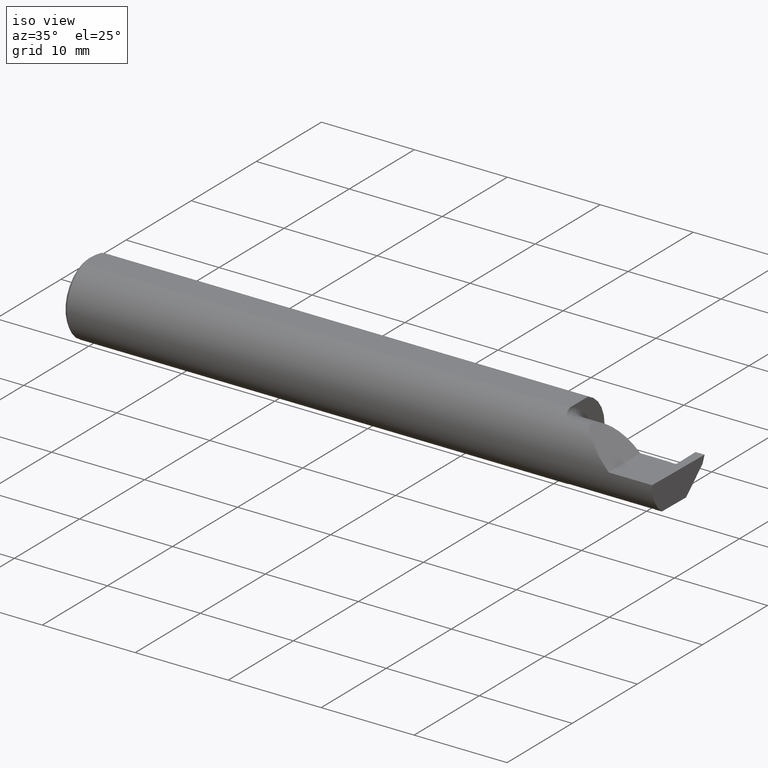
[diagram: clean part render]
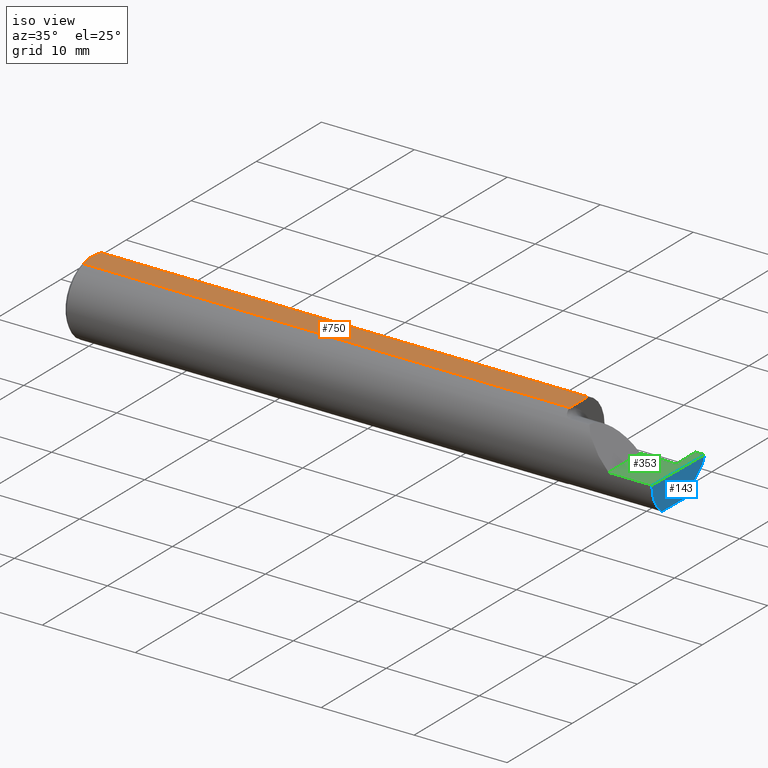
[diagram: same view with three faces highlighted in distinct colors, each labeled with its STEP entity id]
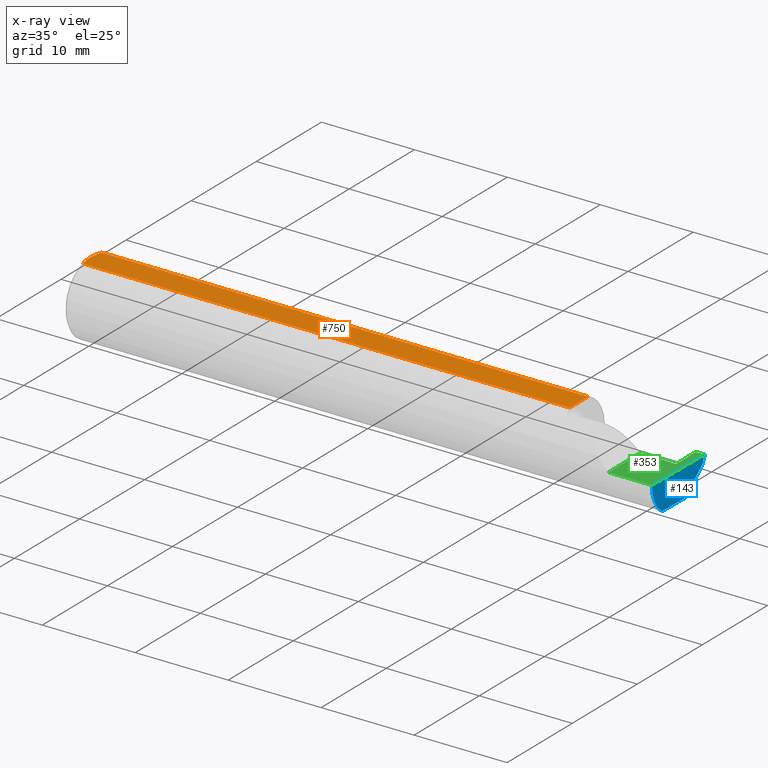
[diagram: x-ray of the same camera — body ghosted, the three highlighted faces saturated]
A machine part, iso view with three faces highlighted in distinct colors.
The next image is the same camera in x-ray (body ghosted, the three faces saturated) — at least one of them is partly hidden behind the body in this view.
Their STEP definitions:

[orange] entity #750 — the highlighted planar face has unit normal (0, -0, 1).
#2 = EDGE_CURVE ( 'NONE', #561, #110, #697, .T. ) ;
#42 = CARTESIAN_POINT ( 'NONE',  ( 0.005910707775482238607, -0.01866948012536270504, 0.1461000000000000076 ) ) ;
#74 = ORIENTED_EDGE ( 'NONE', *, *, #2, .T. ) ;
#78 = CARTESIAN_POINT ( 'NONE',  ( 2.075000000000000178, -0.1561000000000000165, 0.1460999999999999799 ) ) ;
#109 = AXIS2_PLACEMENT_3D ( 'NONE', #177, #838, #264 ) ;
#110 = VERTEX_POINT ( 'NONE', #733 ) ;
#131 = EDGE_CURVE ( 'NONE', #819, #561, #1082, .T. ) ;
#177 = CARTESIAN_POINT ( 'NONE',  ( 2.500000000000000000, -0.1561000000000000165, 0.1460999999999999799 ) ) ;
#190 = ORIENTED_EDGE ( 'NONE', *, *, #131, .T. ) ;
#217 = CARTESIAN_POINT ( 'NONE',  ( 0.01499999999999999771, 0.05497272050753900657, 0.1460999999999999799 ) ) ;
#225 = CARTESIAN_POINT ( 'NONE',  ( 0.004999999999999902960, 0.009391435229055663386, 0.1460999999999999799 ) ) ;
#229 = EDGE_LOOP ( 'NONE', ( #607, #190, #74, #574, #603 ) ) ;
#247 = VERTEX_POINT ( 'NONE', #302 ) ;
#264 = DIRECTION ( 'NONE',  ( 1.000000000000000000, 0.000000000000000000, -0.000000000000000000 ) ) ;
#269 = B_SPLINE_CURVE_WITH_KNOTS ( 'NONE', 3,
 ( #217, #550, #811, #389, #225, #729 ),
 .UNSPECIFIED., .F., .F.,
 ( 4, 2, 4 ),
 ( 0.003294562426666346362, 0.003999440028384116178, 0.004704317630101885993 ),
 .UNSPECIFIED. ) ;
#276 = CARTESIAN_POINT ( 'NONE',  ( 0.01499999999999999944, -0.05497272050753900657, 0.1460999999999999799 ) ) ;
#302 = CARTESIAN_POINT ( 'NONE',  ( 0.004999999999999936787, 2.057148927093534050E-17, 0.1460999999999999799 ) ) ;
#338 = EDGE_CURVE ( 'NONE', #247, #1070, #552, .T. ) ;
#345 = VECTOR ( 'NONE', #643, 39.37007874015748143 ) ;
#383 = CARTESIAN_POINT ( 'NONE',  ( 0.000000000000000000, -0.05497272050753900657, 0.1460999999999999799 ) ) ;
#389 = CARTESIAN_POINT ( 'NONE',  ( 0.005929349363808920914, 0.01879672308419500643, 0.1460999999999999799 ) ) ;
#451 = CARTESIAN_POINT ( 'NONE',  ( 0.009356849677355947789, -0.03706298561014172849, 0.1460999999999999799 ) ) ;
#478 = EDGE_CURVE ( 'NONE', #1070, #819, #806, .T. ) ;
#482 = EDGE_CURVE ( 'NONE', #110, #247, #269, .T. ) ;
#498 = PLANE ( 'NONE',  #109 ) ;
#550 = CARTESIAN_POINT ( 'NONE',  ( 0.01187749995209270472, 0.04610609988228752537, 0.1460999999999999799 ) ) ;
#552 = B_SPLINE_CURVE_WITH_KNOTS ( 'NONE', 3,
 ( #949, #690, #42, #451, #793, #867 ),
 .UNSPECIFIED., .F., .F.,
 ( 4, 2, 4 ),
 ( 0.004704317630101885993, 0.005408659995628783967, 0.006113002361155681942 ),
 .UNSPECIFIED. ) ;
#561 = VERTEX_POINT ( 'NONE', #761 ) ;
#574 = ORIENTED_EDGE ( 'NONE', *, *, #482, .T. ) ;
#587 = CARTESIAN_POINT ( 'NONE',  ( 2.075000000000000178, -0.05497272050753899270, 0.1460999999999999799 ) ) ;
#603 = ORIENTED_EDGE ( 'NONE', *, *, #338, .T. ) ;
#607 = ORIENTED_EDGE ( 'NONE', *, *, #478, .T. ) ;
#643 = DIRECTION ( 'NONE',  ( -0.000000000000000000, 1.000000000000000000, 0.000000000000000000 ) ) ;
#690 = CARTESIAN_POINT ( 'NONE',  ( 0.004999999999999897755, -0.009384304010803548590, 0.1460999999999999521 ) ) ;
#697 = LINE ( 'NONE', #788, #895 ) ;
#729 = CARTESIAN_POINT ( 'NONE',  ( 0.004999999999999936787, 2.057148927093534050E-17, 0.1460999999999999799 ) ) ;
#733 = CARTESIAN_POINT ( 'NONE',  ( 0.01499999999999999771, 0.05497272050753900657, 0.1460999999999999799 ) ) ;
#750 = ADVANCED_FACE ( 'NONE', ( #1026 ), #498, .T. ) ;
#761 = CARTESIAN_POINT ( 'NONE',  ( 2.075000000000000178, 0.05497272050753900657, 0.1460999999999999799 ) ) ;
#788 = CARTESIAN_POINT ( 'NONE',  ( 0.000000000000000000, 0.05497272050753900657, 0.1460999999999999799 ) ) ;
#793 = CARTESIAN_POINT ( 'NONE',  ( 0.01190375560897317594, -0.04618065518901644934, 0.1460999999999999799 ) ) ;
#806 = LINE ( 'NONE', #383, #1055 ) ;
#811 = CARTESIAN_POINT ( 'NONE',  ( 0.009371209226503902576, 0.03711161584255317364, 0.1461000000000000076 ) ) ;
#819 = VERTEX_POINT ( 'NONE', #587 ) ;
#838 = DIRECTION ( 'NONE',  ( 0.000000000000000000, -0.000000000000000000, 1.000000000000000000 ) ) ;
#867 = CARTESIAN_POINT ( 'NONE',  ( 0.01499999999999999944, -0.05497272050753900657, 0.1460999999999999799 ) ) ;
#895 = VECTOR ( 'NONE', #1053, 39.37007874015748143 ) ;
#949 = CARTESIAN_POINT ( 'NONE',  ( 0.004999999999999936787, 2.057148927093534050E-17, 0.1460999999999999799 ) ) ;
#979 = DIRECTION ( 'NONE',  ( 1.000000000000000000, 0.000000000000000000, 0.000000000000000000 ) ) ;
#1026 = FACE_OUTER_BOUND ( 'NONE', #229, .T. ) ;
#1053 = DIRECTION ( 'NONE',  ( -1.000000000000000000, -0.000000000000000000, -0.000000000000000000 ) ) ;
#1055 = VECTOR ( 'NONE', #979, 39.37007874015748143 ) ;
#1070 = VERTEX_POINT ( 'NONE', #276 ) ;
#1082 = LINE ( 'NONE', #78, #345 ) ;

[blue] entity #143 — the highlighted planar face has unit normal (-0.9995, 0.0174, 0.0262).
#8 = CARTESIAN_POINT ( 'NONE',  ( 2.500000000000000000, 0.1539000000000000090, 0.000000000000000000 ) ) ;
#26 = ORIENTED_EDGE ( 'NONE', *, *, #831, .F. ) ;
#28 = ORIENTED_EDGE ( 'NONE', *, *, #286, .F. ) ;
#37 =( BOUNDED_CURVE ( )  B_SPLINE_CURVE ( 3, ( #1084, #80, #299, #646 ),
 .UNSPECIFIED., .F., .T. ) 
 B_SPLINE_CURVE_WITH_KNOTS ( ( 4, 4 ),
 ( 0.5517985523994612951, 0.5878737167659243701 ),
 .UNSPECIFIED. ) 
 CURVE ( )  GEOMETRIC_REPRESENTATION_ITEM ( )  RATIONAL_B_SPLINE_CURVE ( ( 1.000000000000000000, 0.9998915514833921492, 0.9998915514833921492, 1.000000000000000000 ) ) 
 REPRESENTATION_ITEM ( '' )  );
#65 = DIRECTION ( 'NONE',  ( -0.9995050723230146650, 0.01744642593347468448, 0.02617694830787320806 ) ) ;
#80 = CARTESIAN_POINT ( 'NONE',  ( 2.492432917398131220, -0.09210618219364773152, -0.1249728871357007887 ) ) ;
#94 = CARTESIAN_POINT ( 'NONE',  ( 2.494899167008080454, 0.04922584398801997663, -0.1250000000000000278 ) ) ;
#135 = PLANE ( 'NONE',  #790 ) ;
#143 = ADVANCED_FACE ( 'NONE', ( #751 ), #135, .F. ) ;
#170 = CARTESIAN_POINT ( 'NONE',  ( 2.492495113650786021, -0.1336908980339254205, -0.09488266708345007017 ) ) ;
#200 = CARTESIAN_POINT ( 'NONE',  ( 2.492408115719126460, -0.09360841750841747411, -0.1249186702281520206 ) ) ;
#246 = LINE ( 'NONE', #679, #379 ) ;
#274 = EDGE_CURVE ( 'NONE', #1025, #491, #246, .T. ) ;
#286 = EDGE_CURVE ( 'NONE', #1000, #1025, #768, .T. ) ;
#299 = CARTESIAN_POINT ( 'NONE',  ( 2.492458441733171881, -0.09060321336276837279, -0.1250000000000000278 ) ) ;
#372 = DIRECTION ( 'NONE',  ( -0.01745240643727716603, -0.9998476951563912696, 0.000000000000000000 ) ) ;
#376 = VERTEX_POINT ( 'NONE', #1052 ) ;
#379 = VECTOR ( 'NONE', #578, 39.37007874015748854 ) ;
#408 = DIRECTION ( 'NONE',  ( 0.02618093305822682959, 0.000000000000000000, 0.9996572206232497981 ) ) ;
#423 = CARTESIAN_POINT ( 'NONE',  ( 2.494588929872255001, -0.1561000000000000443, 0.000000000000000000 ) ) ;
#432 = VERTEX_POINT ( 'NONE', #200 ) ;
#441 = ORIENTED_EDGE ( 'NONE', *, *, #712, .T. ) ;
#446 =( BOUNDED_CURVE ( )  B_SPLINE_CURVE ( 3, ( #931, #170, #505, #423 ),
 .UNSPECIFIED., .F., .T. ) 
 B_SPLINE_CURVE_WITH_KNOTS ( ( 4, 4 ),
 ( 0.05521439950980804034, 0.9829226100289724100 ),
 .UNSPECIFIED. ) 
 CURVE ( )  GEOMETRIC_REPRESENTATION_ITEM ( )  RATIONAL_B_SPLINE_CURVE ( ( 1.000000000000000000, 0.9295565493311498395, 0.9295565493311498395, 1.000000000000000000 ) ) 
 REPRESENTATION_ITEM ( '' )  );
#491 = VERTEX_POINT ( 'NONE', #94 ) ;
#505 = CARTESIAN_POINT ( 'NONE',  ( 2.493277140361873201, -0.1561000000000000165, -0.05008759057876776416 ) ) ;
#514 = CARTESIAN_POINT ( 'NONE',  ( 2.499001794690755673, 0.1432258439880203515, -0.03099999999999999978 ) ) ;
#573 = VECTOR ( 'NONE', #372, 39.37007874015748143 ) ;
#578 = DIRECTION ( 'NONE',  ( -0.03084697155452407330, -0.7067702824630920366, -0.7067702824630894831 ) ) ;
#618 = CARTESIAN_POINT ( 'NONE',  ( 2.495673289801201733, 0.09357530910345747410, -0.1250000000000000278 ) ) ;
#646 = CARTESIAN_POINT ( 'NONE',  ( 2.492484680420020027, -0.08910000000000001252, -0.1250000000000000000 ) ) ;
#675 = CARTESIAN_POINT ( 'NONE',  ( 2.492484680420020027, -0.08910000000000001252, -0.1250000000000000000 ) ) ;
#679 = CARTESIAN_POINT ( 'NONE',  ( 2.498907590953288960, 0.1410674343035965006, -0.03315840968442382991 ) ) ;
#710 = ORIENTED_EDGE ( 'NONE', *, *, #814, .F. ) ;
#712 = EDGE_CURVE ( 'NONE', #432, #773, #37, .T. ) ;
#714 = ORIENTED_EDGE ( 'NONE', *, *, #274, .F. ) ;
#717 = VECTOR ( 'NONE', #1018, 39.37007874015748854 ) ;
#732 = DIRECTION ( 'NONE',  ( -0.01745240643727716257, -0.9998476951563912696, 1.869448656733061669E-16 ) ) ;
#734 = ORIENTED_EDGE ( 'NONE', *, *, #827, .T. ) ;
#751 = FACE_OUTER_BOUND ( 'NONE', #1077, .T. ) ;
#765 = LINE ( 'NONE', #8, #573 ) ;
#768 = LINE ( 'NONE', #777, #717 ) ;
#773 = VERTEX_POINT ( 'NONE', #675 ) ;
#777 = CARTESIAN_POINT ( 'NONE',  ( 2.499907390804593899, 0.1529096977137292535, -0.002876046671974680051 ) ) ;
#790 = AXIS2_PLACEMENT_3D ( 'NONE', #986, #65, #408 ) ;
#814 = EDGE_CURVE ( 'NONE', #432, #376, #446, .T. ) ;
#827 = EDGE_CURVE ( 'NONE', #1000, #376, #765, .T. ) ;
#831 = EDGE_CURVE ( 'NONE', #491, #773, #1068, .T. ) ;
#864 = VECTOR ( 'NONE', #732, 39.37007874015748143 ) ;
#931 = CARTESIAN_POINT ( 'NONE',  ( 2.492408115719126460, -0.09360841750841747411, -0.1249186702281520206 ) ) ;
#986 = CARTESIAN_POINT ( 'NONE',  ( 2.500000000000000000, 0.1539000000000000090, 0.000000000000000000 ) ) ;
#1000 = VERTEX_POINT ( 'NONE', #1027 ) ;
#1018 = DIRECTION ( 'NONE',  ( -0.03043175897092292859, -0.3254173665140246419, -0.9450806556146477133 ) ) ;
#1025 = VERTEX_POINT ( 'NONE', #514 ) ;
#1027 = CARTESIAN_POINT ( 'NONE',  ( 2.500000000000000000, 0.1539000000000000090, 0.000000000000000000 ) ) ;
#1052 = CARTESIAN_POINT ( 'NONE',  ( 2.494588929872255001, -0.1561000000000000443, 0.000000000000000000 ) ) ;
#1068 = LINE ( 'NONE', #618, #864 ) ;
#1077 = EDGE_LOOP ( 'NONE', ( #441, #26, #714, #28, #734, #710 ) ) ;
#1084 = CARTESIAN_POINT ( 'NONE',  ( 2.492408115719126460, -0.09360841750841747411, -0.1249186702281520206 ) ) ;

[green] entity #353 — the highlighted planar face has unit normal (-0, 0, -1).
#8 = CARTESIAN_POINT ( 'NONE',  ( 2.500000000000000000, 0.1539000000000000090, 0.000000000000000000 ) ) ;
#31 = CARTESIAN_POINT ( 'NONE',  ( 2.456471356043859799, 0.03389999999999732117, -4.694856722559639658E-11 ) ) ;
#34 = CARTESIAN_POINT ( 'NONE',  ( 2.310000000000000053, -0.1560999999999999888, 2.326828918379970872E-17 ) ) ;
#44 = CARTESIAN_POINT ( 'NONE',  ( 2.463470289915465905, 0.04102216684465942453, -1.258616854567686712E-10 ) ) ;
#66 = EDGE_LOOP ( 'NONE', ( #235, #427, #764, #770, #890, #721, #825, #497, #981 ) ) ;
#138 = CARTESIAN_POINT ( 'NONE',  ( 3.749399456654646757E-32, -0.1560999999999999888, 3.061616997868384127E-16 ) ) ;
#175 = EDGE_CURVE ( 'NONE', #579, #370, #373, .T. ) ;
#194 = DIRECTION ( 'NONE',  ( 1.000000000000000000, 0.000000000000000000, 0.000000000000000000 ) ) ;
#210 = PLANE ( 'NONE',  #310 ) ;
#227 = EDGE_CURVE ( 'NONE', #370, #316, #1061, .T. ) ;
#235 = ORIENTED_EDGE ( 'NONE', *, *, #716, .F. ) ;
#273 = DIRECTION ( 'NONE',  ( -0.000000000000000000, 1.000000000000000000, -0.000000000000000000 ) ) ;
#278 = LINE ( 'NONE', #612, #1003 ) ;
#310 = AXIS2_PLACEMENT_3D ( 'NONE', #970, #543, #955 ) ;
#316 = VERTEX_POINT ( 'NONE', #668 ) ;
#335 = CARTESIAN_POINT ( 'NONE',  ( 2.463470289915465905, 0.04102216684465942453, -1.258616854567686712E-10 ) ) ;
#351 = CARTESIAN_POINT ( 'NONE',  ( 2.399999999999999911, 0.1539000000000000090, -2.694222958124035986E-19 ) ) ;
#353 = ADVANCED_FACE ( 'NONE', ( #525 ), #210, .F. ) ;
#370 = VERTEX_POINT ( 'NONE', #534 ) ;
#371 = EDGE_CURVE ( 'NONE', #910, #579, #1002, .T. ) ;
#372 = DIRECTION ( 'NONE',  ( -0.01745240643727716603, -0.9998476951563912696, 0.000000000000000000 ) ) ;
#373 = B_SPLINE_CURVE_WITH_KNOTS ( 'NONE', 1,
 ( #465, #391 ),
 .UNSPECIFIED., .F., .F.,
 ( 2, 2 ),
 ( 0.000000000000000000, 0.0003802724434284823762 ),
 .UNSPECIFIED. ) ;
#376 = VERTEX_POINT ( 'NONE', #1052 ) ;
#391 = CARTESIAN_POINT ( 'NONE',  ( 2.441500000003368420, 0.03390000000033598776, -4.822709006013936333E-11 ) ) ;
#400 = EDGE_CURVE ( 'NONE', #746, #316, #278, .T. ) ;
#427 = ORIENTED_EDGE ( 'NONE', *, *, #827, .F. ) ;
#431 = B_SPLINE_CURVE_WITH_KNOTS ( 'NONE', 1,
 ( #576, #335 ),
 .UNSPECIFIED., .F., .F.,
 ( 2, 2 ),
 ( 6.843756573219531102E-15, 0.002867533701434297599 ),
 .UNSPECIFIED. ) ;
#443 = DIRECTION ( 'NONE',  ( 1.000000000000000000, -0.000000000000000000, -0.000000000000000000 ) ) ;
#465 = CARTESIAN_POINT ( 'NONE',  ( 2.456471356043859799, 0.03389999999999732117, -4.694856722559639658E-11 ) ) ;
#497 = ORIENTED_EDGE ( 'NONE', *, *, #400, .F. ) ;
#525 = FACE_OUTER_BOUND ( 'NONE', #66, .T. ) ;
#534 = CARTESIAN_POINT ( 'NONE',  ( 2.441500000003368420, 0.03390000000033598776, -4.822709006013936333E-11 ) ) ;
#541 = LINE ( 'NONE', #886, #983 ) ;
#543 = DIRECTION ( 'NONE',  ( -1.224646799147353700E-16, 0.000000000000000000, -1.000000000000000000 ) ) ;
#562 = LINE ( 'NONE', #138, #1005 ) ;
#573 = VECTOR ( 'NONE', #372, 39.37007874015748143 ) ;
#576 = CARTESIAN_POINT ( 'NONE',  ( 2.461499999986525022, 0.1539000000000000090, -2.694222958124035986E-19 ) ) ;
#579 = VERTEX_POINT ( 'NONE', #1085 ) ;
#600 = EDGE_CURVE ( 'NONE', #1039, #910, #431, .T. ) ;
#606 = CARTESIAN_POINT ( 'NONE',  ( 2.463542847896578625, 0.03686532263356468581, -1.231239365514285891E-10 ) ) ;
#612 = CARTESIAN_POINT ( 'NONE',  ( 2.075000000000000178, 0.03590000000000001523, 5.204748896376252548E-17 ) ) ;
#621 = CARTESIAN_POINT ( 'NONE',  ( 2.460628833460035914, 0.03389999999987892976, -1.207202258587004251E-10 ) ) ;
#652 = DIRECTION ( 'NONE',  ( -1.000000000000000000, -0.000000000000000000, -0.000000000000000000 ) ) ;
#668 = CARTESIAN_POINT ( 'NONE',  ( 2.439500000000000668, 0.03590000000000006380, 7.121324356843854204E-18 ) ) ;
#693 = CARTESIAN_POINT ( 'NONE',  ( 2.461499999986525022, 0.1539000000000000090, -2.694222958124035986E-19 ) ) ;
#716 = EDGE_CURVE ( 'NONE', #376, #868, #562, .T. ) ;
#721 = ORIENTED_EDGE ( 'NONE', *, *, #175, .T. ) ;
#746 = VERTEX_POINT ( 'NONE', #852 ) ;
#764 = ORIENTED_EDGE ( 'NONE', *, *, #1013, .F. ) ;
#765 = LINE ( 'NONE', #8, #573 ) ;
#767 = LINE ( 'NONE', #351, #822 ) ;
#770 = ORIENTED_EDGE ( 'NONE', *, *, #600, .T. ) ;
#812 = CARTESIAN_POINT ( 'NONE',  ( 2.441500000003368420, 0.03390000000033598776, -4.822709006013936333E-11 ) ) ;
#822 = VECTOR ( 'NONE', #443, 39.37007874015748143 ) ;
#825 = ORIENTED_EDGE ( 'NONE', *, *, #227, .T. ) ;
#827 = EDGE_CURVE ( 'NONE', #1000, #376, #765, .T. ) ;
#852 = CARTESIAN_POINT ( 'NONE',  ( 2.310000000000000053, 0.03589999999999998748, 2.326828918379970872E-17 ) ) ;
#868 = VERTEX_POINT ( 'NONE', #34 ) ;
#883 = EDGE_CURVE ( 'NONE', #868, #746, #541, .T. ) ;
#884 = CARTESIAN_POINT ( 'NONE',  ( 2.463470289915465905, 0.04102216684465942453, -1.258616854567686712E-10 ) ) ;
#886 = CARTESIAN_POINT ( 'NONE',  ( 2.310000000000000053, -0.2000000000000000111, 2.326828918379970872E-17 ) ) ;
#890 = ORIENTED_EDGE ( 'NONE', *, *, #371, .T. ) ;
#910 = VERTEX_POINT ( 'NONE', #44 ) ;
#918 = CARTESIAN_POINT ( 'NONE',  ( 2.439500000000000668, 0.03590000000000006380, 7.121324356843854204E-18 ) ) ;
#955 = DIRECTION ( 'NONE',  ( -1.000000000000000000, 0.000000000000000000, 1.224646799147353700E-16 ) ) ;
#970 = CARTESIAN_POINT ( 'NONE',  ( 2.500000000000000000, -0.2000000000000000111, 0.000000000000000000 ) ) ;
#981 = ORIENTED_EDGE ( 'NONE', *, *, #883, .F. ) ;
#983 = VECTOR ( 'NONE', #273, 39.37007874015748143 ) ;
#1000 = VERTEX_POINT ( 'NONE', #1027 ) ;
#1002 =( BOUNDED_CURVE ( )  B_SPLINE_CURVE ( 3, ( #884, #606, #621, #31 ),
 .UNSPECIFIED., .F., .T. ) 
 B_SPLINE_CURVE_WITH_KNOTS ( ( 4, 4 ),
 ( 8.673617379884047028E-19, 0.0002808519285676875157 ),
 .UNSPECIFIED. ) 
 CURVE ( )  GEOMETRIC_REPRESENTATION_ITEM ( )  RATIONAL_B_SPLINE_CURVE ( ( 1.000000000000000000, 0.8006061761999021531, 0.8006061761999021531, 1.000000000000000000 ) ) 
 REPRESENTATION_ITEM ( '' )  );
#1003 = VECTOR ( 'NONE', #194, 39.37007874015748143 ) ;
#1005 = VECTOR ( 'NONE', #652, 39.37007874015748143 ) ;
#1013 = EDGE_CURVE ( 'NONE', #1039, #1000, #767, .T. ) ;
#1027 = CARTESIAN_POINT ( 'NONE',  ( 2.500000000000000000, 0.1539000000000000090, 0.000000000000000000 ) ) ;
#1039 = VERTEX_POINT ( 'NONE', #693 ) ;
#1052 = CARTESIAN_POINT ( 'NONE',  ( 2.494588929872255001, -0.1561000000000000443, 0.000000000000000000 ) ) ;
#1061 = B_SPLINE_CURVE_WITH_KNOTS ( 'NONE', 1,
 ( #812, #918 ),
 .UNSPECIFIED., .F., .F.,
 ( 2, 2 ),
 ( 0.000000000000000000, 7.184204902300483377E-05 ),
 .UNSPECIFIED. ) ;
#1085 = CARTESIAN_POINT ( 'NONE',  ( 2.456471356043859799, 0.03389999999999732117, -4.694856722559639658E-11 ) ) ;